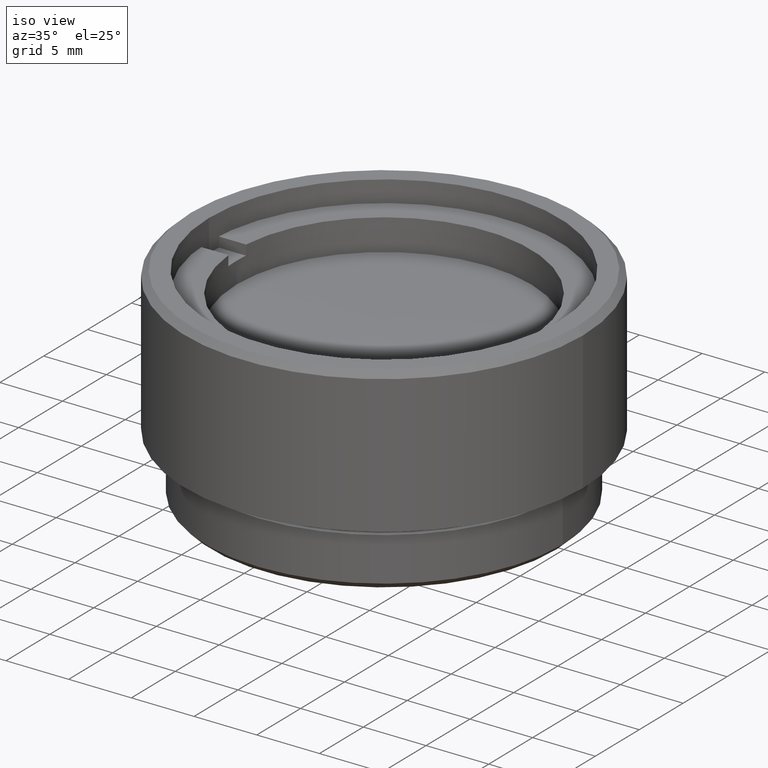
[diagram: clean part render]
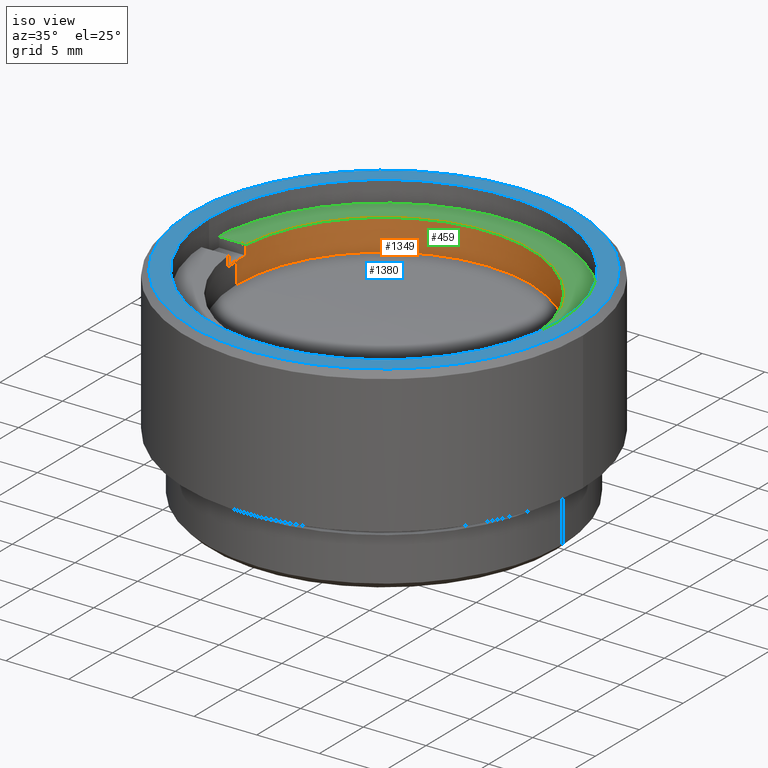
[diagram: same view with three faces highlighted in distinct colors, each labeled with its STEP entity id]
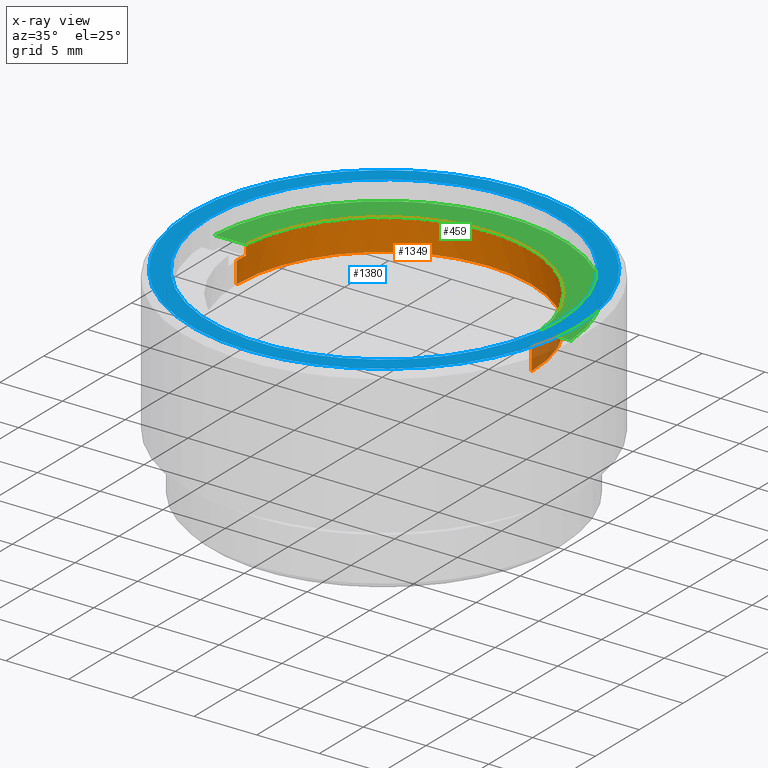
[diagram: x-ray of the same camera — body ghosted, the three highlighted faces saturated]
A machine part, iso view with three faces highlighted in distinct colors.
The next image is the same camera in x-ray (body ghosted, the three faces saturated) — at least one of them is partly hidden behind the body in this view.
Their STEP definitions:

[orange] entity #1349 — the highlighted cylindrical surface (partial cylindrical patch) has radius 11.75 mm, axis along (-0, -0, -1).
#12 = DIRECTION ( 'NONE',  ( -1.000000000000000000, 0.000000000000000000, 0.000000000000000000 ) ) ;
#15 = VERTEX_POINT ( 'NONE', #76 ) ;
#20 = CIRCLE ( 'NONE', #1586, 11.75000000000000178 ) ;
#76 = CARTESIAN_POINT ( 'NONE',  ( -11.70736947396809668, 1.000000000000000000, 2.500000000000000000 ) ) ;
#89 = DIRECTION ( 'NONE',  ( 0.000000000000000000, 0.000000000000000000, 1.000000000000000000 ) ) ;
#115 = DIRECTION ( 'NONE',  ( -0.000000000000000000, -0.000000000000000000, -1.000000000000000000 ) ) ;
#120 = ORIENTED_EDGE ( 'NONE', *, *, #1357, .F. ) ;
#149 = VERTEX_POINT ( 'NONE', #242 ) ;
#190 = EDGE_CURVE ( 'NONE', #764, #200, #1540, .T. ) ;
#200 = VERTEX_POINT ( 'NONE', #895 ) ;
#208 = EDGE_CURVE ( 'NONE', #764, #15, #1261, .T. ) ;
#215 = DIRECTION ( 'NONE',  ( -0.000000000000000000, 0.000000000000000000, 1.000000000000000000 ) ) ;
#217 = CARTESIAN_POINT ( 'NONE',  ( 0.000000000000000000, 0.000000000000000000, 0.000000000000000000 ) ) ;
#242 = CARTESIAN_POINT ( 'NONE',  ( 11.70736947396809668, 1.000000000000000000, 2.500000000000000000 ) ) ;
#293 = ORIENTED_EDGE ( 'NONE', *, *, #414, .T. ) ;
#317 = CIRCLE ( 'NONE', #840, 11.75000000000000178 ) ;
#363 = CARTESIAN_POINT ( 'NONE',  ( 0.000000000000000000, 0.000000000000000000, 1.700000000000000178 ) ) ;
#382 = VERTEX_POINT ( 'NONE', #436 ) ;
#397 = VERTEX_POINT ( 'NONE', #1070 ) ;
#401 = VECTOR ( 'NONE', #115, 1000.000000000000000 ) ;
#402 = DIRECTION ( 'NONE',  ( -0.000000000000000000, -0.000000000000000000, -1.000000000000000000 ) ) ;
#414 = EDGE_CURVE ( 'NONE', #149, #15, #20, .T. ) ;
#418 = ORIENTED_EDGE ( 'NONE', *, *, #208, .F. ) ;
#436 = CARTESIAN_POINT ( 'NONE',  ( 11.70736947396809668, 1.000000000000000000, 1.700000000000000178 ) ) ;
#449 = CIRCLE ( 'NONE', #524, 11.75000000000000178 ) ;
#479 = ORIENTED_EDGE ( 'NONE', *, *, #190, .T. ) ;
#486 = AXIS2_PLACEMENT_3D ( 'NONE', #1693, #215, #1291 ) ;
#499 = CARTESIAN_POINT ( 'NONE',  ( -11.70736947396809668, 1.000000000000000000, 2.500000000000000000 ) ) ;
#524 = AXIS2_PLACEMENT_3D ( 'NONE', #217, #1657, #1237 ) ;
#597 = LINE ( 'NONE', #1544, #709 ) ;
#608 = EDGE_CURVE ( 'NONE', #149, #382, #597, .T. ) ;
#637 = DIRECTION ( 'NONE',  ( -0.000000000000000000, 0.000000000000000000, 1.000000000000000000 ) ) ;
#639 = CYLINDRICAL_SURFACE ( 'NONE', #1288, 11.75000000000000178 ) ;
#659 = CARTESIAN_POINT ( 'NONE',  ( -11.70736947396809668, 1.000000000000000000, 1.700000000000000178 ) ) ;
#709 = VECTOR ( 'NONE', #1140, 1000.000000000000000 ) ;
#764 = VERTEX_POINT ( 'NONE', #659 ) ;
#840 = AXIS2_PLACEMENT_3D ( 'NONE', #363, #637, #1172 ) ;
#895 = CARTESIAN_POINT ( 'NONE',  ( -11.75000000000000178, 0.000000000000000000, 1.700000000000000178 ) ) ;
#1023 = CARTESIAN_POINT ( 'NONE',  ( 11.75000000000000178, 1.438959988998140357E-15, 1.700000000000000178 ) ) ;
#1030 = CARTESIAN_POINT ( 'NONE',  ( -11.75000000000000178, 0.000000000000000000, 0.000000000000000000 ) ) ;
#1037 = ORIENTED_EDGE ( 'NONE', *, *, #1279, .T. ) ;
#1038 = LINE ( 'NONE', #1588, #1683 ) ;
#1046 = CARTESIAN_POINT ( 'NONE',  ( 0.000000000000000000, 0.000000000000000000, 2.500000000000000000 ) ) ;
#1053 = DIRECTION ( 'NONE',  ( -0.000000000000000000, -0.000000000000000000, -1.000000000000000000 ) ) ;
#1060 = ORIENTED_EDGE ( 'NONE', *, *, #608, .F. ) ;
#1070 = CARTESIAN_POINT ( 'NONE',  ( 11.75000000000000178, 1.438959988998140357E-15, 0.000000000000000000 ) ) ;
#1134 = ORIENTED_EDGE ( 'NONE', *, *, #1281, .T. ) ;
#1140 = DIRECTION ( 'NONE',  ( -0.000000000000000000, -0.000000000000000000, -1.000000000000000000 ) ) ;
#1166 = FACE_OUTER_BOUND ( 'NONE', #1603, .T. ) ;
#1172 = DIRECTION ( 'NONE',  ( 1.000000000000000000, 0.000000000000000000, 0.000000000000000000 ) ) ;
#1237 = DIRECTION ( 'NONE',  ( 1.000000000000000000, 0.000000000000000000, 0.000000000000000000 ) ) ;
#1261 = LINE ( 'NONE', #499, #1427 ) ;
#1279 = EDGE_CURVE ( 'NONE', #1575, #382, #317, .T. ) ;
#1281 = EDGE_CURVE ( 'NONE', #200, #1697, #1701, .T. ) ;
#1288 = AXIS2_PLACEMENT_3D ( 'NONE', #1046, #402, #12 ) ;
#1291 = DIRECTION ( 'NONE',  ( 1.000000000000000000, 0.000000000000000000, 0.000000000000000000 ) ) ;
#1349 = ADVANCED_FACE ( 'NONE', ( #1166 ), #639, .F. ) ;
#1357 = EDGE_CURVE ( 'NONE', #1575, #397, #1038, .T. ) ;
#1385 = DIRECTION ( 'NONE',  ( 1.000000000000000000, 0.000000000000000000, 0.000000000000000000 ) ) ;
#1427 = VECTOR ( 'NONE', #89, 1000.000000000000000 ) ;
#1466 = ORIENTED_EDGE ( 'NONE', *, *, #1616, .F. ) ;
#1513 = DIRECTION ( 'NONE',  ( 0.000000000000000000, 0.000000000000000000, 1.000000000000000000 ) ) ;
#1540 = CIRCLE ( 'NONE', #486, 11.75000000000000178 ) ;
#1544 = CARTESIAN_POINT ( 'NONE',  ( 11.70736947396809668, 1.000000000000000000, 2.500000000000000000 ) ) ;
#1567 = CARTESIAN_POINT ( 'NONE',  ( -11.75000000000000178, 0.000000000000000000, 2.500000000000000000 ) ) ;
#1575 = VERTEX_POINT ( 'NONE', #1023 ) ;
#1586 = AXIS2_PLACEMENT_3D ( 'NONE', #1652, #1513, #1385 ) ;
#1588 = CARTESIAN_POINT ( 'NONE',  ( 11.75000000000000178, 1.438959988998140357E-15, 2.500000000000000000 ) ) ;
#1603 = EDGE_LOOP ( 'NONE', ( #120, #1037, #1060, #293, #418, #479, #1134, #1466 ) ) ;
#1616 = EDGE_CURVE ( 'NONE', #397, #1697, #449, .T. ) ;
#1652 = CARTESIAN_POINT ( 'NONE',  ( 0.000000000000000000, 0.000000000000000000, 2.500000000000000000 ) ) ;
#1657 = DIRECTION ( 'NONE',  ( 0.000000000000000000, 0.000000000000000000, 1.000000000000000000 ) ) ;
#1683 = VECTOR ( 'NONE', #1053, 1000.000000000000000 ) ;
#1693 = CARTESIAN_POINT ( 'NONE',  ( 0.000000000000000000, 0.000000000000000000, 1.700000000000000178 ) ) ;
#1697 = VERTEX_POINT ( 'NONE', #1030 ) ;
#1701 = LINE ( 'NONE', #1567, #401 ) ;

[blue] entity #1380 — the highlighted planar face has unit normal (0, 0, 1).
#3 = CARTESIAN_POINT ( 'NONE',  ( 0.000000000000000000, 0.000000000000000000, 16.50000000000000000 ) ) ;
#16 = CARTESIAN_POINT ( 'NONE',  ( -15.37800000000000367, 0.000000000000000000, 16.50000000000000000 ) ) ;
#17 = VERTEX_POINT ( 'NONE', #1485 ) ;
#117 = DIRECTION ( 'NONE',  ( 0.000000000000000000, 0.000000000000000000, 1.000000000000000000 ) ) ;
#132 = AXIS2_PLACEMENT_3D ( 'NONE', #760, #392, #1578 ) ;
#138 = CIRCLE ( 'NONE', #875, 15.37800000000000367 ) ;
#142 = CARTESIAN_POINT ( 'NONE',  ( 13.94999999999999929, 0.000000000000000000, 16.50000000000000000 ) ) ;
#214 = ORIENTED_EDGE ( 'NONE', *, *, #1333, .F. ) ;
#234 = EDGE_CURVE ( 'NONE', #17, #748, #461, .T. ) ;
#255 = EDGE_CURVE ( 'NONE', #748, #17, #138, .T. ) ;
#286 = DIRECTION ( 'NONE',  ( 0.000000000000000000, 0.000000000000000000, 1.000000000000000000 ) ) ;
#392 = DIRECTION ( 'NONE',  ( 0.000000000000000000, 0.000000000000000000, 1.000000000000000000 ) ) ;
#461 = CIRCLE ( 'NONE', #1659, 15.37800000000000367 ) ;
#483 = CARTESIAN_POINT ( 'NONE',  ( 0.000000000000000000, 0.000000000000000000, 16.50000000000000000 ) ) ;
#542 = CARTESIAN_POINT ( 'NONE',  ( -13.94999999999999929, 1.708382284810557565E-15, 16.50000000000000000 ) ) ;
#624 = ORIENTED_EDGE ( 'NONE', *, *, #234, .T. ) ;
#636 = CARTESIAN_POINT ( 'NONE',  ( 0.000000000000000000, 0.000000000000000000, 16.50000000000000000 ) ) ;
#688 = EDGE_LOOP ( 'NONE', ( #1337, #214 ) ) ;
#704 = CIRCLE ( 'NONE', #132, 13.94999999999999929 ) ;
#725 = VERTEX_POINT ( 'NONE', #542 ) ;
#729 = EDGE_CURVE ( 'NONE', #1455, #725, #1135, .T. ) ;
#748 = VERTEX_POINT ( 'NONE', #16 ) ;
#760 = CARTESIAN_POINT ( 'NONE',  ( 0.000000000000000000, 0.000000000000000000, 16.50000000000000000 ) ) ;
#823 = AXIS2_PLACEMENT_3D ( 'NONE', #636, #286, #1446 ) ;
#875 = AXIS2_PLACEMENT_3D ( 'NONE', #3, #1437, #1199 ) ;
#924 = AXIS2_PLACEMENT_3D ( 'NONE', #1698, #117, #1702 ) ;
#1008 = DIRECTION ( 'NONE',  ( 0.000000000000000000, 0.000000000000000000, 1.000000000000000000 ) ) ;
#1135 = CIRCLE ( 'NONE', #823, 13.94999999999999929 ) ;
#1198 = FACE_BOUND ( 'NONE', #688, .T. ) ;
#1199 = DIRECTION ( 'NONE',  ( 1.000000000000000000, 0.000000000000000000, 0.000000000000000000 ) ) ;
#1333 = EDGE_CURVE ( 'NONE', #725, #1455, #704, .T. ) ;
#1337 = ORIENTED_EDGE ( 'NONE', *, *, #729, .F. ) ;
#1380 = ADVANCED_FACE ( 'NONE', ( #1443, #1198 ), #1462, .T. ) ;
#1392 = ORIENTED_EDGE ( 'NONE', *, *, #255, .T. ) ;
#1437 = DIRECTION ( 'NONE',  ( 0.000000000000000000, 0.000000000000000000, 1.000000000000000000 ) ) ;
#1443 = FACE_OUTER_BOUND ( 'NONE', #1498, .T. ) ;
#1446 = DIRECTION ( 'NONE',  ( 1.000000000000000000, 0.000000000000000000, 0.000000000000000000 ) ) ;
#1455 = VERTEX_POINT ( 'NONE', #142 ) ;
#1462 = PLANE ( 'NONE',  #924 ) ;
#1485 = CARTESIAN_POINT ( 'NONE',  ( 15.37800000000000367, 1.913878017707484038E-15, 16.50000000000000000 ) ) ;
#1498 = EDGE_LOOP ( 'NONE', ( #1392, #624 ) ) ;
#1542 = DIRECTION ( 'NONE',  ( 1.000000000000000000, 0.000000000000000000, 0.000000000000000000 ) ) ;
#1578 = DIRECTION ( 'NONE',  ( 1.000000000000000000, 0.000000000000000000, 0.000000000000000000 ) ) ;
#1659 = AXIS2_PLACEMENT_3D ( 'NONE', #483, #1008, #1542 ) ;
#1698 = CARTESIAN_POINT ( 'NONE',  ( 0.000000000000000000, 0.000000000000000000, 16.50000000000000000 ) ) ;
#1702 = DIRECTION ( 'NONE',  ( 1.000000000000000000, 0.000000000000000000, -0.000000000000000000 ) ) ;

[green] entity #459 — the highlighted planar face has unit normal (0, 0, 1).
#5 = LINE ( 'NONE', #380, #387 ) ;
#15 = VERTEX_POINT ( 'NONE', #76 ) ;
#20 = CIRCLE ( 'NONE', #1586, 11.75000000000000178 ) ;
#63 = CARTESIAN_POINT ( 'NONE',  ( 14.21486897582949993, 1.000000000000000000, 2.500000000000000000 ) ) ;
#76 = CARTESIAN_POINT ( 'NONE',  ( -11.70736947396809668, 1.000000000000000000, 2.500000000000000000 ) ) ;
#92 = FACE_OUTER_BOUND ( 'NONE', #644, .T. ) ;
#110 = VECTOR ( 'NONE', #1171, 1000.000000000000000 ) ;
#149 = VERTEX_POINT ( 'NONE', #242 ) ;
#242 = CARTESIAN_POINT ( 'NONE',  ( 11.70736947396809668, 1.000000000000000000, 2.500000000000000000 ) ) ;
#380 = CARTESIAN_POINT ( 'NONE',  ( -30.62185530834360492, 1.000000000000000000, 2.500000000000000000 ) ) ;
#387 = VECTOR ( 'NONE', #783, 1000.000000000000000 ) ;
#414 = EDGE_CURVE ( 'NONE', #149, #15, #20, .T. ) ;
#417 = AXIS2_PLACEMENT_3D ( 'NONE', #1233, #950, #1212 ) ;
#459 = ADVANCED_FACE ( 'NONE', ( #92 ), #1010, .T. ) ;
#618 = CARTESIAN_POINT ( 'NONE',  ( 0.000000000000000000, 0.000000000000000000, 2.500000000000000000 ) ) ;
#644 = EDGE_LOOP ( 'NONE', ( #938, #1655, #1447, #1564 ) ) ;
#650 = EDGE_CURVE ( 'NONE', #972, #149, #1336, .T. ) ;
#739 = EDGE_CURVE ( 'NONE', #15, #1112, #5, .T. ) ;
#783 = DIRECTION ( 'NONE',  ( -1.000000000000000000, -0.000000000000000000, -0.000000000000000000 ) ) ;
#812 = EDGE_CURVE ( 'NONE', #972, #1112, #1188, .T. ) ;
#938 = ORIENTED_EDGE ( 'NONE', *, *, #650, .F. ) ;
#941 = CARTESIAN_POINT ( 'NONE',  ( -30.62185530834360492, 1.000000000000000000, 2.500000000000000000 ) ) ;
#950 = DIRECTION ( 'NONE',  ( 0.000000000000000000, 0.000000000000000000, 1.000000000000000000 ) ) ;
#972 = VERTEX_POINT ( 'NONE', #63 ) ;
#1010 = PLANE ( 'NONE',  #1630 ) ;
#1112 = VERTEX_POINT ( 'NONE', #1668 ) ;
#1171 = DIRECTION ( 'NONE',  ( -1.000000000000000000, -0.000000000000000000, -0.000000000000000000 ) ) ;
#1188 = CIRCLE ( 'NONE', #417, 14.25000000000000000 ) ;
#1212 = DIRECTION ( 'NONE',  ( 1.000000000000000000, 0.000000000000000000, 0.000000000000000000 ) ) ;
#1233 = CARTESIAN_POINT ( 'NONE',  ( 0.000000000000000000, 0.000000000000000000, 2.500000000000000000 ) ) ;
#1284 = DIRECTION ( 'NONE',  ( 1.000000000000000000, 0.000000000000000000, -0.000000000000000000 ) ) ;
#1336 = LINE ( 'NONE', #941, #110 ) ;
#1385 = DIRECTION ( 'NONE',  ( 1.000000000000000000, 0.000000000000000000, 0.000000000000000000 ) ) ;
#1447 = ORIENTED_EDGE ( 'NONE', *, *, #739, .F. ) ;
#1513 = DIRECTION ( 'NONE',  ( 0.000000000000000000, 0.000000000000000000, 1.000000000000000000 ) ) ;
#1558 = DIRECTION ( 'NONE',  ( 0.000000000000000000, 0.000000000000000000, 1.000000000000000000 ) ) ;
#1564 = ORIENTED_EDGE ( 'NONE', *, *, #414, .F. ) ;
#1586 = AXIS2_PLACEMENT_3D ( 'NONE', #1652, #1513, #1385 ) ;
#1630 = AXIS2_PLACEMENT_3D ( 'NONE', #618, #1558, #1284 ) ;
#1652 = CARTESIAN_POINT ( 'NONE',  ( 0.000000000000000000, 0.000000000000000000, 2.500000000000000000 ) ) ;
#1655 = ORIENTED_EDGE ( 'NONE', *, *, #812, .T. ) ;
#1668 = CARTESIAN_POINT ( 'NONE',  ( -14.21486897582949993, 1.000000000000000000, 2.500000000000000000 ) ) ;